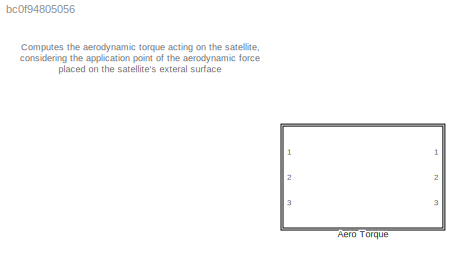
MODEL slx_bc0f94805056
KIND library
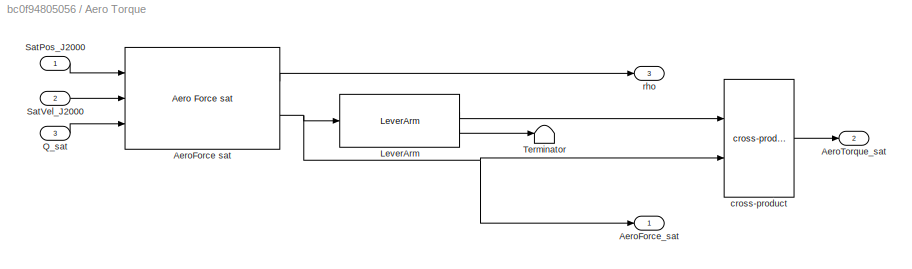
BLOCK [SubSystem] Aero Torque
  Ports = [3, 3]
  RequestExecContextInheritance = off
BLOCK [Reference] Aero Torque/AeroForce sat  REF=AeroForce_sat/Aero Force sat
  Ports = [3, 2]
  SourceBlock = AeroForce_sat/Aero Force sat
  SourceType = SubSystem
BLOCK [Outport] Aero Torque/AeroForce_sat
  IconDisplay = Port number
BLOCK [Outport] Aero Torque/AeroTorque_sat
  IconDisplay = Port number
  Port = 2
BLOCK [Reference] Aero Torque/LeverArm  REF=LeverArm/LeverArm
  Ports = [1, 2]
  SourceBlock = LeverArm/LeverArm
  SourceType = SubSystem
BLOCK [Inport] Aero Torque/Q_sat
  IconDisplay = Port number
  Port = 3
BLOCK [Inport] Aero Torque/SatPos_J2000
  IconDisplay = Port number
BLOCK [Inport] Aero Torque/SatVel_J2000
  IconDisplay = Port number
  Port = 2
BLOCK [Terminator] Aero Torque/Terminator
BLOCK [Reference] Aero Torque/cross-product  REF=CrossProd/cross-product
  Ports = [2, 1]
  SourceBlock = CrossProd/cross-product
  SourceType = SubSystem
BLOCK [Outport] Aero Torque/rho
  IconDisplay = Port number
  Port = 3
ANNOTATION (root): Computes the aerodynamic torque acting on the satellite, considering the application point of the aerodynamic force placed on the satellite's exteral surface
LINE Aero Torque/AeroForce sat:1 -> Aero Torque/rho:1
NET Aero Torque/AeroForce sat:2 -> Aero Torque/AeroForce_sat:1, Aero Torque/LeverArm:1, Aero Torque/cross-product:2
LINE Aero Torque/LeverArm:1 -> Aero Torque/cross-product:1
LINE Aero Torque/LeverArm:2 -> Aero Torque/Terminator:1
LINE Aero Torque/Q_sat:1 -> Aero Torque/AeroForce sat:3
LINE Aero Torque/SatPos_J2000:1 -> Aero Torque/AeroForce sat:1
LINE Aero Torque/SatVel_J2000:1 -> Aero Torque/AeroForce sat:2
LINE Aero Torque/cross-product:1 -> Aero Torque/AeroTorque_sat:1
note: NET lines group one-source signal fan-out (src -> all destinations, sorted); 1:1 wires keep LINE
